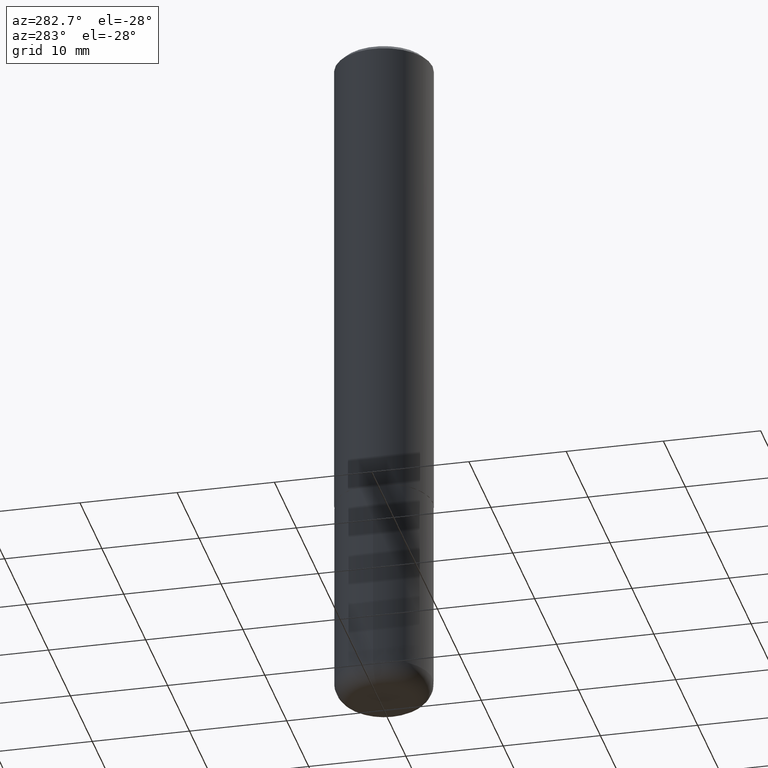
[diagram: clean part render]
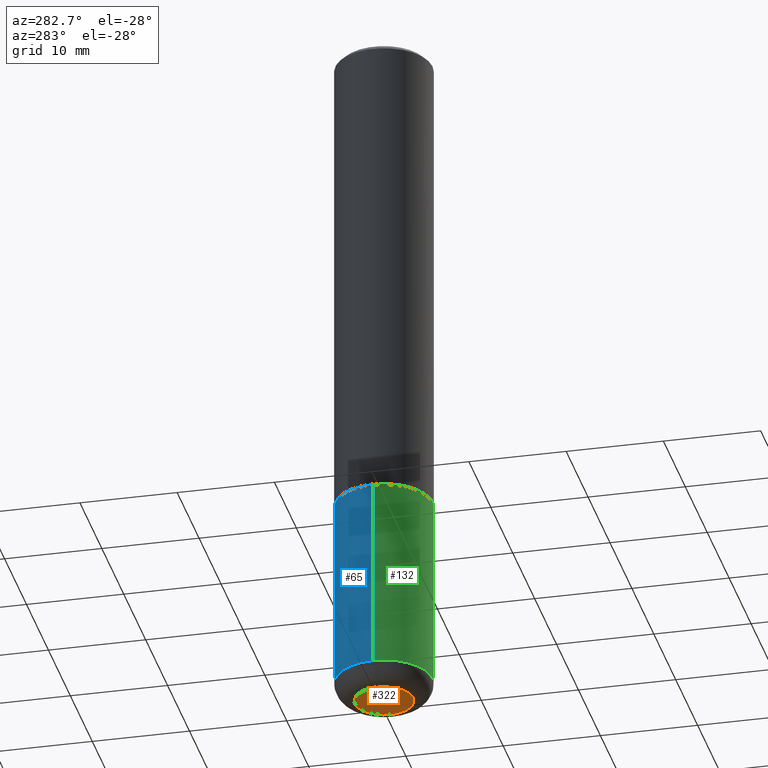
[diagram: same view with three faces highlighted in distinct colors, each labeled with its STEP entity id]
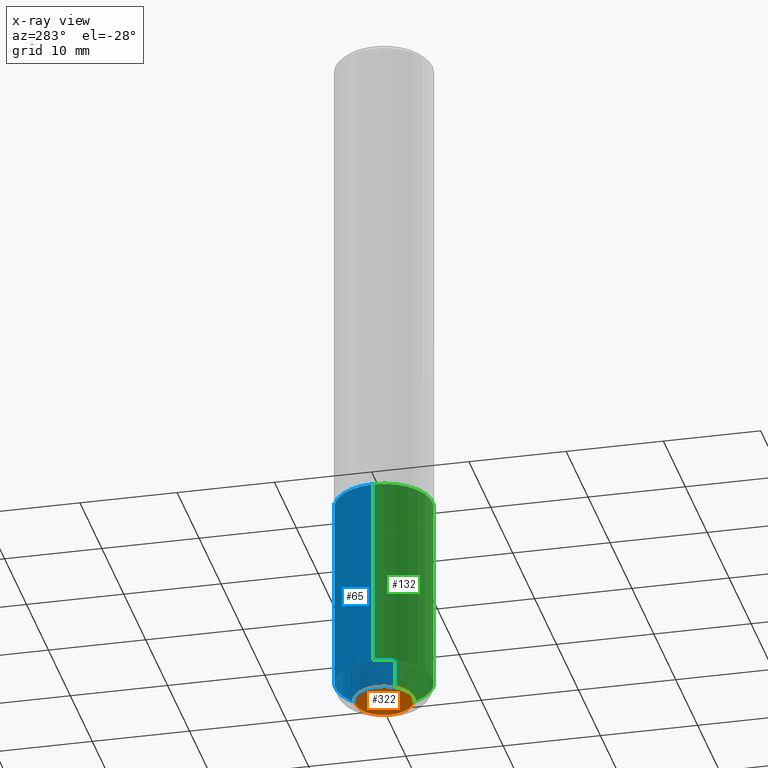
[diagram: x-ray of the same camera — body ghosted, the three highlighted faces saturated]
A machine part, auxiliary view with three faces highlighted in distinct colors.
The next image is the same camera in x-ray (body ghosted, the three faces saturated) — at least one of them is partly hidden behind the body in this view.
Their STEP definitions:

[orange] entity #322 — the highlighted planar face has unit normal (0, -0, -1).
#35 = CARTESIAN_POINT ( 'NONE',  ( 0.1181500000000000189, -1.072199004345341108E-14, -2.834599999999999120 ) ) ;
#63 = PLANE ( 'NONE',  #173 ) ;
#78 = EDGE_LOOP ( 'NONE', ( #296, #227 ) ) ;
#91 = DIRECTION ( 'NONE',  ( -2.445468806185136597E-29, 3.491481338843145583E-15, 1.000000000000000000 ) ) ;
#95 = DIRECTION ( 'NONE',  ( -1.000000000000000000, 6.982962677686265922E-15, -4.876176775795935793E-29 ) ) ;
#128 = DIRECTION ( 'NONE',  ( 1.000000000000000000, -6.982962677686265922E-15, 0.000000000000000000 ) ) ;
#173 = AXIS2_PLACEMENT_3D ( 'NONE', #321, #309, #95 ) ;
#196 = VERTEX_POINT ( 'NONE', #366 ) ;
#212 = AXIS2_PLACEMENT_3D ( 'NONE', #284, #91, #128 ) ;
#227 = ORIENTED_EDGE ( 'NONE', *, *, #360, .F. ) ;
#255 = CARTESIAN_POINT ( 'NONE',  ( 6.931925878012386396E-29, -9.896953003084777729E-15, -2.834599999999999120 ) ) ;
#266 = CIRCLE ( 'NONE', #212, 0.1181500000000000189 ) ;
#284 = CARTESIAN_POINT ( 'NONE',  ( 6.931925878012386396E-29, -9.896953003084777729E-15, -2.834599999999999120 ) ) ;
#286 = FACE_OUTER_BOUND ( 'NONE', #78, .T. ) ;
#296 = ORIENTED_EDGE ( 'NONE', *, *, #307, .F. ) ;
#307 = EDGE_CURVE ( 'NONE', #368, #196, #391, .T. ) ;
#309 = DIRECTION ( 'NONE',  ( 2.438088387897960049E-29, -3.491481338843145188E-15, -1.000000000000000000 ) ) ;
#318 = DIRECTION ( 'NONE',  ( 1.000000000000000000, -6.982962677686265922E-15, 0.000000000000000000 ) ) ;
#321 = CARTESIAN_POINT ( 'NONE',  ( 1.608536513484406626E-28, 3.211292994106457270E-15, -2.834599999999999120 ) ) ;
#322 = ADVANCED_FACE ( 'NONE', ( #286 ), #63, .T. ) ;
#353 = AXIS2_PLACEMENT_3D ( 'NONE', #255, #381, #318 ) ;
#360 = EDGE_CURVE ( 'NONE', #196, #368, #266, .T. ) ;
#366 = CARTESIAN_POINT ( 'NONE',  ( -0.1181500000000000189, -8.640458403579145034E-15, -2.834599999999999120 ) ) ;
#368 = VERTEX_POINT ( 'NONE', #35 ) ;
#381 = DIRECTION ( 'NONE',  ( -2.445468806185136597E-29, 3.491481338843145583E-15, 1.000000000000000000 ) ) ;
#391 = CIRCLE ( 'NONE', #353, 0.1181500000000000189 ) ;

[blue] entity #65 — the highlighted cylindrical surface (partial cylindrical patch) has radius 5 mm, axis along (-0, 0, 1).
#1 = CARTESIAN_POINT ( 'NONE',  ( 0.1968500000000000250, -1.374596203102541608E-15, 9.598753983154300858E-30 ) ) ;
#18 = DIRECTION ( 'NONE',  ( 1.000000000000000000, -6.982962677686265922E-15, 4.876176775795935793E-29 ) ) ;
#22 = AXIS2_PLACEMENT_3D ( 'NONE', #262, #392, #241 ) ;
#29 = FACE_OUTER_BOUND ( 'NONE', #248, .T. ) ;
#55 = VERTEX_POINT ( 'NONE', #319 ) ;
#57 = AXIS2_PLACEMENT_3D ( 'NONE', #144, #274, #153 ) ;
#59 = CYLINDRICAL_SURFACE ( 'NONE', #105, 0.1968500000000000250 ) ;
#60 = DIRECTION ( 'NONE',  ( -2.445468806185136877E-29, 3.491481338843145188E-15, 1.000000000000000000 ) ) ;
#65 = ADVANCED_FACE ( 'NONE', ( #29 ), #59, .T. ) ;
#72 = ORIENTED_EDGE ( 'NONE', *, *, #415, .T. ) ;
#80 = EDGE_CURVE ( 'NONE', #340, #55, #339, .T. ) ;
#102 = VERTEX_POINT ( 'NONE', #328 ) ;
#105 = AXIS2_PLACEMENT_3D ( 'NONE', #187, #199, #18 ) ;
#111 = EDGE_CURVE ( 'NONE', #363, #102, #273, .T. ) ;
#143 = DIRECTION ( 'NONE',  ( -2.445468806185136877E-29, 3.491481338843145188E-15, 1.000000000000000000 ) ) ;
#144 = CARTESIAN_POINT ( 'NONE',  ( 4.813905344975441835E-29, -6.872981015512731707E-15, -1.968500000000000139 ) ) ;
#153 = DIRECTION ( 'NONE',  ( 1.000000000000000000, -6.982962677686267499E-15, 0.000000000000000000 ) ) ;
#158 = ORIENTED_EDGE ( 'NONE', *, *, #80, .T. ) ;
#162 = ORIENTED_EDGE ( 'NONE', *, *, #111, .F. ) ;
#187 = CARTESIAN_POINT ( 'NONE',  ( 0.000000000000000000, 0.000000000000000000, 0.000000000000000000 ) ) ;
#199 = DIRECTION ( 'NONE',  ( -2.445468806185136597E-29, 3.491481338843145583E-15, 1.000000000000000000 ) ) ;
#203 = LINE ( 'NONE', #1, #239 ) ;
#210 = CARTESIAN_POINT ( 'NONE',  ( -0.1968500000000000250, 1.398703375343757393E-15, -9.682923725166783677E-30 ) ) ;
#221 = ORIENTED_EDGE ( 'NONE', *, *, #245, .F. ) ;
#239 = VECTOR ( 'NONE', #60, 39.37007874015748143 ) ;
#241 = DIRECTION ( 'NONE',  ( 1.000000000000000000, -6.982962677686267499E-15, 0.000000000000000000 ) ) ;
#245 = EDGE_CURVE ( 'NONE', #340, #363, #203, .T. ) ;
#248 = EDGE_LOOP ( 'NONE', ( #158, #72, #162, #221 ) ) ;
#262 = CARTESIAN_POINT ( 'NONE',  ( 6.739467482965618232E-29, -9.622173421717824390E-15, -2.755900000000000016 ) ) ;
#273 = CIRCLE ( 'NONE', #57, 0.1968500000000000250 ) ;
#274 = DIRECTION ( 'NONE',  ( -2.445468806185136597E-29, 3.491481338843145583E-15, 1.000000000000000000 ) ) ;
#287 = CARTESIAN_POINT ( 'NONE',  ( 0.1968500000000000250, -8.247577218615273316E-15, -1.968500000000000139 ) ) ;
#315 = CARTESIAN_POINT ( 'NONE',  ( 0.1968499999999998307, -1.099676962482036600E-14, -2.755900000000000016 ) ) ;
#319 = CARTESIAN_POINT ( 'NONE',  ( -0.1968499999999998307, -8.223470046374068969E-15, -2.755900000000000016 ) ) ;
#328 = CARTESIAN_POINT ( 'NONE',  ( -0.1968500000000000250, -6.848873843271521050E-15, -1.968500000000000139 ) ) ;
#339 = CIRCLE ( 'NONE', #22, 0.1968500000000000250 ) ;
#340 = VERTEX_POINT ( 'NONE', #315 ) ;
#346 = LINE ( 'NONE', #210, #354 ) ;
#354 = VECTOR ( 'NONE', #143, 39.37007874015748143 ) ;
#363 = VERTEX_POINT ( 'NONE', #287 ) ;
#392 = DIRECTION ( 'NONE',  ( -2.445468806185136597E-29, 3.491481338843145583E-15, 1.000000000000000000 ) ) ;
#415 = EDGE_CURVE ( 'NONE', #55, #102, #346, .T. ) ;

[green] entity #132 — the highlighted cylindrical surface (partial cylindrical patch) has radius 5 mm, axis along (-0, 0, 1).
#1 = CARTESIAN_POINT ( 'NONE',  ( 0.1968500000000000250, -1.374596203102541608E-15, 9.598753983154300858E-30 ) ) ;
#33 = ORIENTED_EDGE ( 'NONE', *, *, #408, .T. ) ;
#55 = VERTEX_POINT ( 'NONE', #319 ) ;
#60 = DIRECTION ( 'NONE',  ( -2.445468806185136877E-29, 3.491481338843145188E-15, 1.000000000000000000 ) ) ;
#73 = EDGE_CURVE ( 'NONE', #102, #363, #98, .T. ) ;
#97 = CARTESIAN_POINT ( 'NONE',  ( 6.739467482965618232E-29, -9.622173421717824390E-15, -2.755900000000000016 ) ) ;
#98 = CIRCLE ( 'NONE', #313, 0.1968500000000000250 ) ;
#102 = VERTEX_POINT ( 'NONE', #328 ) ;
#109 = ORIENTED_EDGE ( 'NONE', *, *, #73, .F. ) ;
#132 = ADVANCED_FACE ( 'NONE', ( #228 ), #157, .T. ) ;
#134 = DIRECTION ( 'NONE',  ( -2.445468806185136597E-29, 3.491481338843145583E-15, 1.000000000000000000 ) ) ;
#143 = DIRECTION ( 'NONE',  ( -2.445468806185136877E-29, 3.491481338843145188E-15, 1.000000000000000000 ) ) ;
#157 = CYLINDRICAL_SURFACE ( 'NONE', #405, 0.1968500000000000250 ) ;
#191 = CARTESIAN_POINT ( 'NONE',  ( 0.000000000000000000, 0.000000000000000000, 0.000000000000000000 ) ) ;
#193 = DIRECTION ( 'NONE',  ( 1.000000000000000000, -6.982962677686265922E-15, 4.876176775795935793E-29 ) ) ;
#203 = LINE ( 'NONE', #1, #239 ) ;
#205 = CIRCLE ( 'NONE', #359, 0.1968500000000000250 ) ;
#210 = CARTESIAN_POINT ( 'NONE',  ( -0.1968500000000000250, 1.398703375343757393E-15, -9.682923725166783677E-30 ) ) ;
#228 = FACE_OUTER_BOUND ( 'NONE', #295, .T. ) ;
#239 = VECTOR ( 'NONE', #60, 39.37007874015748143 ) ;
#245 = EDGE_CURVE ( 'NONE', #340, #363, #203, .T. ) ;
#269 = DIRECTION ( 'NONE',  ( -2.445468806185136597E-29, 3.491481338843145583E-15, 1.000000000000000000 ) ) ;
#287 = CARTESIAN_POINT ( 'NONE',  ( 0.1968500000000000250, -8.247577218615273316E-15, -1.968500000000000139 ) ) ;
#295 = EDGE_LOOP ( 'NONE', ( #390, #33, #342, #109 ) ) ;
#313 = AXIS2_PLACEMENT_3D ( 'NONE', #330, #269, #394 ) ;
#315 = CARTESIAN_POINT ( 'NONE',  ( 0.1968499999999998307, -1.099676962482036600E-14, -2.755900000000000016 ) ) ;
#319 = CARTESIAN_POINT ( 'NONE',  ( -0.1968499999999998307, -8.223470046374068969E-15, -2.755900000000000016 ) ) ;
#328 = CARTESIAN_POINT ( 'NONE',  ( -0.1968500000000000250, -6.848873843271521050E-15, -1.968500000000000139 ) ) ;
#330 = CARTESIAN_POINT ( 'NONE',  ( 4.813905344975441835E-29, -6.872981015512731707E-15, -1.968500000000000139 ) ) ;
#340 = VERTEX_POINT ( 'NONE', #315 ) ;
#342 = ORIENTED_EDGE ( 'NONE', *, *, #245, .T. ) ;
#346 = LINE ( 'NONE', #210, #354 ) ;
#348 = DIRECTION ( 'NONE',  ( -2.445468806185136597E-29, 3.491481338843145583E-15, 1.000000000000000000 ) ) ;
#354 = VECTOR ( 'NONE', #143, 39.37007874015748143 ) ;
#359 = AXIS2_PLACEMENT_3D ( 'NONE', #97, #134, #388 ) ;
#363 = VERTEX_POINT ( 'NONE', #287 ) ;
#388 = DIRECTION ( 'NONE',  ( 1.000000000000000000, -6.982962677686267499E-15, 0.000000000000000000 ) ) ;
#390 = ORIENTED_EDGE ( 'NONE', *, *, #415, .F. ) ;
#394 = DIRECTION ( 'NONE',  ( 1.000000000000000000, -6.982962677686267499E-15, 0.000000000000000000 ) ) ;
#405 = AXIS2_PLACEMENT_3D ( 'NONE', #191, #348, #193 ) ;
#408 = EDGE_CURVE ( 'NONE', #55, #340, #205, .T. ) ;
#415 = EDGE_CURVE ( 'NONE', #55, #102, #346, .T. ) ;